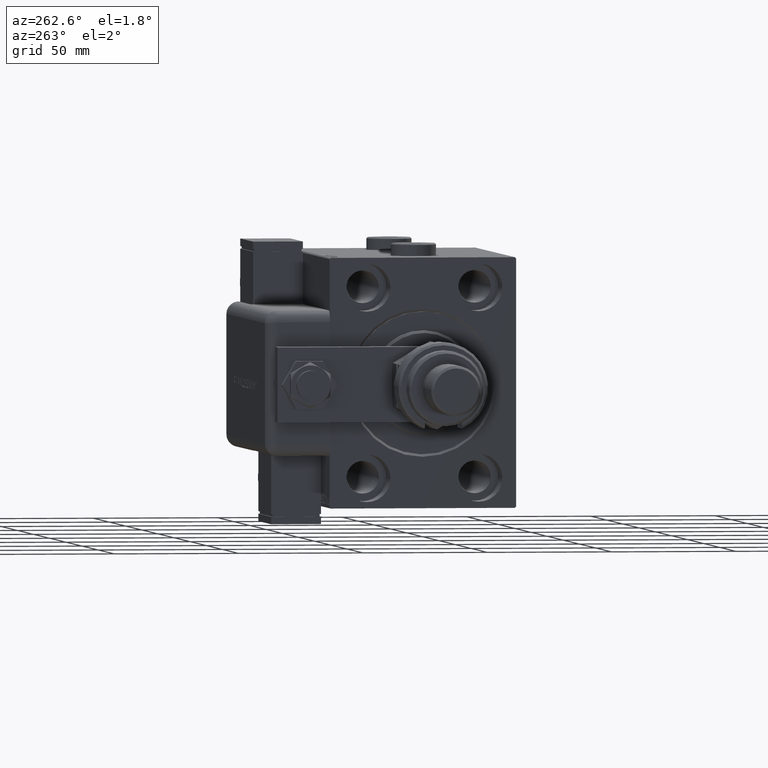
[diagram: clean part render]
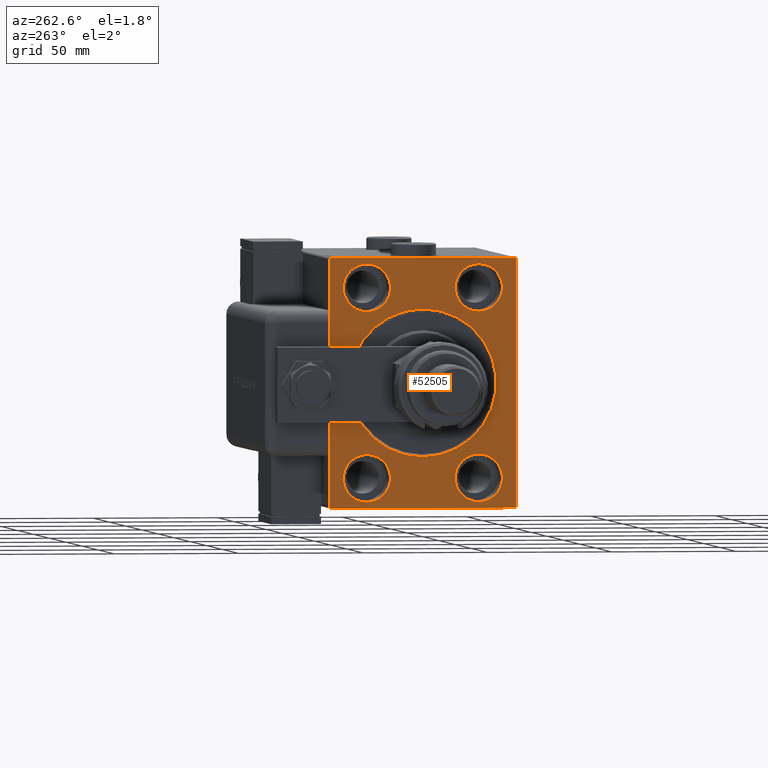
[diagram: same view with one face highlighted and labeled with its STEP entity id]
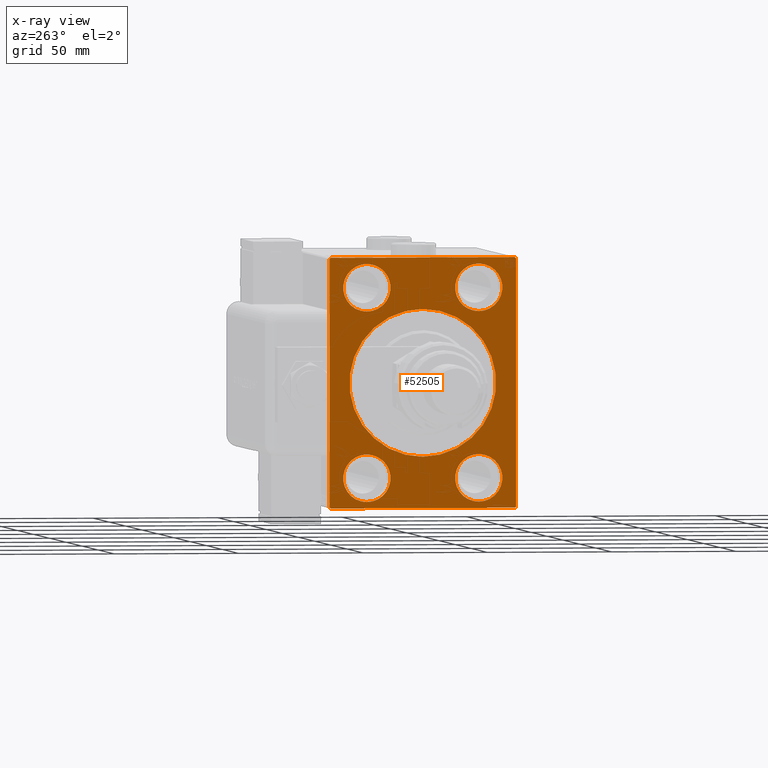
[diagram: x-ray of the same camera — body ghosted, the highlighted face saturated]
A machine part, auxiliary view. The second image highlights one B-rep face of the part: STEP entity #52505.
The next image is the same camera in x-ray: the body ghosted, the highlighted face saturated — about 0% of this face is hidden behind the body in this view.
In plain terms, the highlighted planar face has unit normal (1, 0, 0).
Its self-contained STEP definition (entity closure, byte-faithful):
#267 = CIRCLE ( 'NONE', #61206, 9.500000000000001776 ) ;
#464 = DIRECTION ( 'NONE',  ( 1.000000000000000000, 0.000000000000000000, 0.000000000000000000 ) ) ;
#1601 = CARTESIAN_POINT ( 'NONE',  ( 0.000000000000000000, 37.50000000000000711, -50.00000000000000000 ) ) ;
#1824 = VECTOR ( 'NONE', #27273, 999.9999999999998863 ) ;
#1899 = ORIENTED_EDGE ( 'NONE', *, *, #37872, .T. ) ;
#1910 = DIRECTION ( 'NONE',  ( -1.000000000000000000, 0.000000000000000000, 0.000000000000000000 ) ) ;
#3039 = DIRECTION ( 'NONE',  ( 0.000000000000000000, 0.000000000000000000, -1.000000000000000000 ) ) ;
#3391 = FACE_BOUND ( 'NONE', #21788, .T. ) ;
#3807 = DIRECTION ( 'NONE',  ( -1.000000000000000000, 0.000000000000000000, 0.000000000000000000 ) ) ;
#4049 = DIRECTION ( 'NONE',  ( 0.000000000000000000, 1.000000000000000000, 9.251858538542970348E-17 ) ) ;
#4327 = VERTEX_POINT ( 'NONE', #53299 ) ;
#4697 = CIRCLE ( 'NONE', #40835, 9.500000000000001776 ) ;
#5005 = VERTEX_POINT ( 'NONE', #61035 ) ;
#5107 = DIRECTION ( 'NONE',  ( -0.000000000000000000, 0.7071067811865474617, 0.7071067811865474617 ) ) ;
#5946 = ORIENTED_EDGE ( 'NONE', *, *, #43470, .T. ) ;
#6924 = DIRECTION ( 'NONE',  ( 0.000000000000000000, 0.000000000000000000, 1.000000000000000000 ) ) ;
#7402 = LINE ( 'NONE', #1601, #52979 ) ;
#7855 = DIRECTION ( 'NONE',  ( -1.000000000000000000, 0.000000000000000000, 0.000000000000000000 ) ) ;
#7882 = CARTESIAN_POINT ( 'NONE',  ( 0.000000000000000000, -22.49999999999999645, 37.99999999999999289 ) ) ;
#8252 = FACE_BOUND ( 'NONE', #53974, .T. ) ;
#8371 = CARTESIAN_POINT ( 'NONE',  ( 0.000000000000000000, 22.49999999999999645, -28.49999999999998934 ) ) ;
#8698 = LINE ( 'NONE', #18394, #45593 ) ;
#9108 = CARTESIAN_POINT ( 'NONE',  ( 0.000000000000000000, 37.49999999999999289, 49.50000000000000000 ) ) ;
#9241 = EDGE_CURVE ( 'NONE', #45352, #45493, #52188, .T. ) ;
#9672 = DIRECTION ( 'NONE',  ( 0.000000000000000000, 0.000000000000000000, 1.000000000000000000 ) ) ;
#9829 = FACE_BOUND ( 'NONE', #19494, .T. ) ;
#9986 = AXIS2_PLACEMENT_3D ( 'NONE', #60304, #31810, #60945 ) ;
#10205 = CARTESIAN_POINT ( 'NONE',  ( 0.000000000000000000, 37.00000000000000711, -50.00000000000000000 ) ) ;
#10263 = VECTOR ( 'NONE', #3039, 1000.000000000000000 ) ;
#10913 = CARTESIAN_POINT ( 'NONE',  ( 0.000000000000000000, -22.49999999999999645, 37.99999999999999289 ) ) ;
#11682 = EDGE_CURVE ( 'NONE', #47963, #44050, #4697, .T. ) ;
#11727 = DIRECTION ( 'NONE',  ( 0.000000000000000000, -0.7071067811865474617, -0.7071067811865474617 ) ) ;
#11988 = EDGE_CURVE ( 'NONE', #42587, #14422, #55724, .T. ) ;
#12003 = VERTEX_POINT ( 'NONE', #30487 ) ;
#12373 = DIRECTION ( 'NONE',  ( 0.000000000000000000, 0.000000000000000000, 1.000000000000000000 ) ) ;
#13050 = AXIS2_PLACEMENT_3D ( 'NONE', #57490, #3807, #63283 ) ;
#13657 = DIRECTION ( 'NONE',  ( 0.000000000000000000, 0.000000000000000000, -1.000000000000000000 ) ) ;
#13670 = VERTEX_POINT ( 'NONE', #47034 ) ;
#13975 = CARTESIAN_POINT ( 'NONE',  ( 0.000000000000000000, 0.000000000000000000, 0.000000000000000000 ) ) ;
#14422 = VERTEX_POINT ( 'NONE', #10205 ) ;
#14607 = VERTEX_POINT ( 'NONE', #61281 ) ;
#15492 = EDGE_LOOP ( 'NONE', ( #38528, #17139 ) ) ;
#15813 = DIRECTION ( 'NONE',  ( 1.000000000000000000, 0.000000000000000000, 0.000000000000000000 ) ) ;
#16096 = LINE ( 'NONE', #25131, #40262 ) ;
#16157 = EDGE_CURVE ( 'NONE', #13670, #14422, #54485, .T. ) ;
#16930 = CIRCLE ( 'NONE', #22091, 9.500000000000001776 ) ;
#16980 = DIRECTION ( 'NONE',  ( 0.000000000000000000, 0.000000000000000000, 1.000000000000000000 ) ) ;
#17139 = ORIENTED_EDGE ( 'NONE', *, *, #32235, .F. ) ;
#17178 = ORIENTED_EDGE ( 'NONE', *, *, #11988, .T. ) ;
#17904 = CARTESIAN_POINT ( 'NONE',  ( 0.000000000000000000, -37.50000000000000711, 49.99999999999999289 ) ) ;
#18049 = CARTESIAN_POINT ( 'NONE',  ( 0.000000000000000000, 22.50000000000000355, 47.49999999999999289 ) ) ;
#18394 = CARTESIAN_POINT ( 'NONE',  ( 0.000000000000000000, -37.00000000000003553, -50.00000000000000711 ) ) ;
#18708 = VERTEX_POINT ( 'NONE', #18049 ) ;
#19494 = EDGE_LOOP ( 'NONE', ( #38496, #48696 ) ) ;
#19765 = VERTEX_POINT ( 'NONE', #28332 ) ;
#20487 = FACE_BOUND ( 'NONE', #32031, .T. ) ;
#20859 = CARTESIAN_POINT ( 'NONE',  ( 0.000000000000000000, 22.49999999999999645, -37.99999999999999289 ) ) ;
#21482 = CARTESIAN_POINT ( 'NONE',  ( 0.000000000000000000, 37.50000000000000711, -49.50000000000000000 ) ) ;
#21788 = EDGE_LOOP ( 'NONE', ( #56298, #27271 ) ) ;
#22091 = AXIS2_PLACEMENT_3D ( 'NONE', #62039, #1910, #31941 ) ;
#22623 = CARTESIAN_POINT ( 'NONE',  ( 0.000000000000000000, -36.99999999999999289, 49.99999999999999289 ) ) ;
#23066 = LINE ( 'NONE', #17904, #10263 ) ;
#23789 = VECTOR ( 'NONE', #4049, 1000.000000000000000 ) ;
#23792 = CARTESIAN_POINT ( 'NONE',  ( 0.000000000000000000, 0.000000000000000000, 29.50000000000004263 ) ) ;
#23897 = DIRECTION ( 'NONE',  ( -1.000000000000000000, 0.000000000000000000, 0.000000000000000000 ) ) ;
#25004 = FACE_BOUND ( 'NONE', #15492, .T. ) ;
#25131 = CARTESIAN_POINT ( 'NONE',  ( 0.000000000000000000, -37.50000000000000711, 49.49999999999997868 ) ) ;
#25270 = VECTOR ( 'NONE', #57559, 1000.000000000000000 ) ;
#25462 = EDGE_CURVE ( 'NONE', #18708, #62310, #267, .T. ) ;
#26559 = EDGE_CURVE ( 'NONE', #42587, #45493, #7402, .T. ) ;
#27084 = AXIS2_PLACEMENT_3D ( 'NONE', #10913, #51004, #31574 ) ;
#27271 = ORIENTED_EDGE ( 'NONE', *, *, #37962, .F. ) ;
#27273 = DIRECTION ( 'NONE',  ( -0.000000000000000000, 0.7071067811865425767, -0.7071067811865525687 ) ) ;
#27351 = CIRCLE ( 'NONE', #40800, 9.500000000000001776 ) ;
#27579 = DIRECTION ( 'NONE',  ( -1.000000000000000000, 0.000000000000000000, 0.000000000000000000 ) ) ;
#28148 = EDGE_CURVE ( 'NONE', #14607, #5005, #16930, .T. ) ;
#28332 = CARTESIAN_POINT ( 'NONE',  ( 0.000000000000000000, -37.50000000000000711, -49.50000000000003553 ) ) ;
#28434 = ORIENTED_EDGE ( 'NONE', *, *, #16157, .F. ) ;
#29451 = CIRCLE ( 'NONE', #46075, 9.500000000000001776 ) ;
#30433 = EDGE_CURVE ( 'NONE', #45352, #55551, #62424, .T. ) ;
#30487 = CARTESIAN_POINT ( 'NONE',  ( 0.000000000000000000, -37.50000000000000711, 49.49999999999997868 ) ) ;
#31574 = DIRECTION ( 'NONE',  ( 0.000000000000000000, 0.000000000000000000, 1.000000000000000000 ) ) ;
#31630 = AXIS2_PLACEMENT_3D ( 'NONE', #13975, #15813, #13657 ) ;
#31810 = DIRECTION ( 'NONE',  ( 1.000000000000000000, 0.000000000000000000, 0.000000000000000000 ) ) ;
#31941 = DIRECTION ( 'NONE',  ( 0.000000000000000000, 0.000000000000000000, 1.000000000000000000 ) ) ;
#32031 = EDGE_LOOP ( 'NONE', ( #46666, #37518 ) ) ;
#32235 = EDGE_CURVE ( 'NONE', #52222, #4327, #29451, .T. ) ;
#32236 = EDGE_CURVE ( 'NONE', #62310, #18708, #45011, .T. ) ;
#33692 = CIRCLE ( 'NONE', #31630, 29.50000000000004263 ) ;
#34881 = CARTESIAN_POINT ( 'NONE',  ( 0.000000000000000000, 22.50000000000000355, 37.99999999999999289 ) ) ;
#35027 = PLANE ( 'NONE',  #36324 ) ;
#35835 = CIRCLE ( 'NONE', #9986, 29.50000000000004263 ) ;
#36324 = AXIS2_PLACEMENT_3D ( 'NONE', #63833, #464, #45411 ) ;
#36651 = DIRECTION ( 'NONE',  ( 0.000000000000000000, 0.000000000000000000, 1.000000000000000000 ) ) ;
#37518 = ORIENTED_EDGE ( 'NONE', *, *, #32236, .F. ) ;
#37833 = CARTESIAN_POINT ( 'NONE',  ( 0.000000000000000000, 37.49999999999999289, 50.00000000000000711 ) ) ;
#37872 = EDGE_CURVE ( 'NONE', #43370, #55014, #33692, .T. ) ;
#37962 = EDGE_CURVE ( 'NONE', #44050, #47963, #55428, .T. ) ;
#38118 = DIRECTION ( 'NONE',  ( -0.000000000000000000, -0.7071067811865474617, 0.7071067811865474617 ) ) ;
#38496 = ORIENTED_EDGE ( 'NONE', *, *, #28148, .F. ) ;
#38528 = ORIENTED_EDGE ( 'NONE', *, *, #52864, .F. ) ;
#38957 = CARTESIAN_POINT ( 'NONE',  ( 0.000000000000000000, -37.50000000000000711, -50.00000000000000711 ) ) ;
#39246 = FACE_OUTER_BOUND ( 'NONE', #59787, .T. ) ;
#39764 = EDGE_CURVE ( 'NONE', #55014, #43370, #35835, .T. ) ;
#40262 = VECTOR ( 'NONE', #5107, 1000.000000000000114 ) ;
#40800 = AXIS2_PLACEMENT_3D ( 'NONE', #41474, #7855, #12373 ) ;
#40835 = AXIS2_PLACEMENT_3D ( 'NONE', #20859, #40910, #16980 ) ;
#40910 = DIRECTION ( 'NONE',  ( -1.000000000000000000, 0.000000000000000000, 0.000000000000000000 ) ) ;
#41185 = CARTESIAN_POINT ( 'NONE',  ( 0.000000000000000000, 22.50000000000000355, 37.99999999999999289 ) ) ;
#41474 = CARTESIAN_POINT ( 'NONE',  ( 0.000000000000000000, -22.50000000000000711, -37.99999999999999289 ) ) ;
#41515 = CARTESIAN_POINT ( 'NONE',  ( 0.000000000000000000, 36.99999999999999289, 50.00000000000000711 ) ) ;
#42587 = VERTEX_POINT ( 'NONE', #21482 ) ;
#42823 = EDGE_CURVE ( 'NONE', #12003, #19765, #23066, .T. ) ;
#43211 = CARTESIAN_POINT ( 'NONE',  ( 0.000000000000000000, -22.49999999999999645, 28.49999999999998934 ) ) ;
#43370 = VERTEX_POINT ( 'NONE', #63318 ) ;
#43470 = EDGE_CURVE ( 'NONE', #12003, #55551, #16096, .T. ) ;
#44022 = ORIENTED_EDGE ( 'NONE', *, *, #9241, .T. ) ;
#44050 = VERTEX_POINT ( 'NONE', #53396 ) ;
#45011 = CIRCLE ( 'NONE', #59440, 9.500000000000001776 ) ;
#45352 = VERTEX_POINT ( 'NONE', #51282 ) ;
#45411 = DIRECTION ( 'NONE',  ( 0.000000000000000000, 0.000000000000000000, -1.000000000000000000 ) ) ;
#45493 = VERTEX_POINT ( 'NONE', #9108 ) ;
#45593 = VECTOR ( 'NONE', #38118, 1000.000000000000114 ) ;
#46075 = AXIS2_PLACEMENT_3D ( 'NONE', #7882, #27579, #6924 ) ;
#46666 = ORIENTED_EDGE ( 'NONE', *, *, #25462, .F. ) ;
#46726 = CIRCLE ( 'NONE', #27084, 9.500000000000001776 ) ;
#47034 = CARTESIAN_POINT ( 'NONE',  ( 0.000000000000000000, -37.00000000000003553, -50.00000000000000711 ) ) ;
#47963 = VERTEX_POINT ( 'NONE', #8371 ) ;
#48696 = ORIENTED_EDGE ( 'NONE', *, *, #62700, .F. ) ;
#50183 = EDGE_CURVE ( 'NONE', #13670, #19765, #8698, .T. ) ;
#50867 = CARTESIAN_POINT ( 'NONE',  ( 0.000000000000000000, 37.50000000000000711, -49.50000000000000000 ) ) ;
#51004 = DIRECTION ( 'NONE',  ( -1.000000000000000000, 0.000000000000000000, 0.000000000000000000 ) ) ;
#51282 = CARTESIAN_POINT ( 'NONE',  ( 0.000000000000000000, 36.99999999999999289, 50.00000000000000711 ) ) ;
#52188 = LINE ( 'NONE', #41515, #1824 ) ;
#52222 = VERTEX_POINT ( 'NONE', #43211 ) ;
#52505 = ADVANCED_FACE ( 'NONE', ( #8252, #3391, #25004, #20487, #9829, #39246 ), #35027, .F. ) ;
#52859 = CARTESIAN_POINT ( 'NONE',  ( 0.000000000000000000, 22.50000000000000355, 28.49999999999998934 ) ) ;
#52864 = EDGE_CURVE ( 'NONE', #4327, #52222, #46726, .T. ) ;
#52979 = VECTOR ( 'NONE', #60454, 1000.000000000000000 ) ;
#53035 = ORIENTED_EDGE ( 'NONE', *, *, #50183, .T. ) ;
#53299 = CARTESIAN_POINT ( 'NONE',  ( 0.000000000000000000, -22.49999999999999645, 47.49999999999999289 ) ) ;
#53396 = CARTESIAN_POINT ( 'NONE',  ( 0.000000000000000000, 22.49999999999999645, -47.49999999999999289 ) ) ;
#53974 = EDGE_LOOP ( 'NONE', ( #61665, #1899 ) ) ;
#54485 = LINE ( 'NONE', #38957, #23789 ) ;
#54709 = ORIENTED_EDGE ( 'NONE', *, *, #26559, .F. ) ;
#55014 = VERTEX_POINT ( 'NONE', #23792 ) ;
#55428 = CIRCLE ( 'NONE', #13050, 9.500000000000001776 ) ;
#55551 = VERTEX_POINT ( 'NONE', #22623 ) ;
#55724 = LINE ( 'NONE', #50867, #56639 ) ;
#56298 = ORIENTED_EDGE ( 'NONE', *, *, #11682, .F. ) ;
#56639 = VECTOR ( 'NONE', #11727, 1000.000000000000114 ) ;
#57179 = ORIENTED_EDGE ( 'NONE', *, *, #42823, .F. ) ;
#57273 = ORIENTED_EDGE ( 'NONE', *, *, #30433, .F. ) ;
#57490 = CARTESIAN_POINT ( 'NONE',  ( 0.000000000000000000, 22.49999999999999645, -37.99999999999999289 ) ) ;
#57559 = DIRECTION ( 'NONE',  ( 0.000000000000000000, -1.000000000000000000, -1.850371707708594316E-16 ) ) ;
#59440 = AXIS2_PLACEMENT_3D ( 'NONE', #41185, #61571, #36651 ) ;
#59787 = EDGE_LOOP ( 'NONE', ( #57179, #5946, #57273, #44022, #54709, #17178, #28434, #53035 ) ) ;
#60304 = CARTESIAN_POINT ( 'NONE',  ( 0.000000000000000000, 0.000000000000000000, 0.000000000000000000 ) ) ;
#60454 = DIRECTION ( 'NONE',  ( 0.000000000000000000, -1.387778780781445676E-16, 1.000000000000000000 ) ) ;
#60945 = DIRECTION ( 'NONE',  ( 0.000000000000000000, 0.000000000000000000, -1.000000000000000000 ) ) ;
#61035 = CARTESIAN_POINT ( 'NONE',  ( 0.000000000000000000, -22.50000000000000711, -47.49999999999999289 ) ) ;
#61206 = AXIS2_PLACEMENT_3D ( 'NONE', #34881, #23897, #9672 ) ;
#61281 = CARTESIAN_POINT ( 'NONE',  ( 0.000000000000000000, -22.50000000000000711, -28.49999999999998934 ) ) ;
#61571 = DIRECTION ( 'NONE',  ( -1.000000000000000000, 0.000000000000000000, 0.000000000000000000 ) ) ;
#61665 = ORIENTED_EDGE ( 'NONE', *, *, #39764, .T. ) ;
#62039 = CARTESIAN_POINT ( 'NONE',  ( 0.000000000000000000, -22.50000000000000711, -37.99999999999999289 ) ) ;
#62310 = VERTEX_POINT ( 'NONE', #52859 ) ;
#62424 = LINE ( 'NONE', #37833, #25270 ) ;
#62700 = EDGE_CURVE ( 'NONE', #5005, #14607, #27351, .T. ) ;
#63283 = DIRECTION ( 'NONE',  ( 0.000000000000000000, 0.000000000000000000, 1.000000000000000000 ) ) ;
#63318 = CARTESIAN_POINT ( 'NONE',  ( 0.000000000000000000, 3.612708057484697126E-15, -29.50000000000004263 ) ) ;
#63833 = CARTESIAN_POINT ( 'NONE',  ( 0.000000000000000000, 0.000000000000000000, 0.000000000000000000 ) ) ;